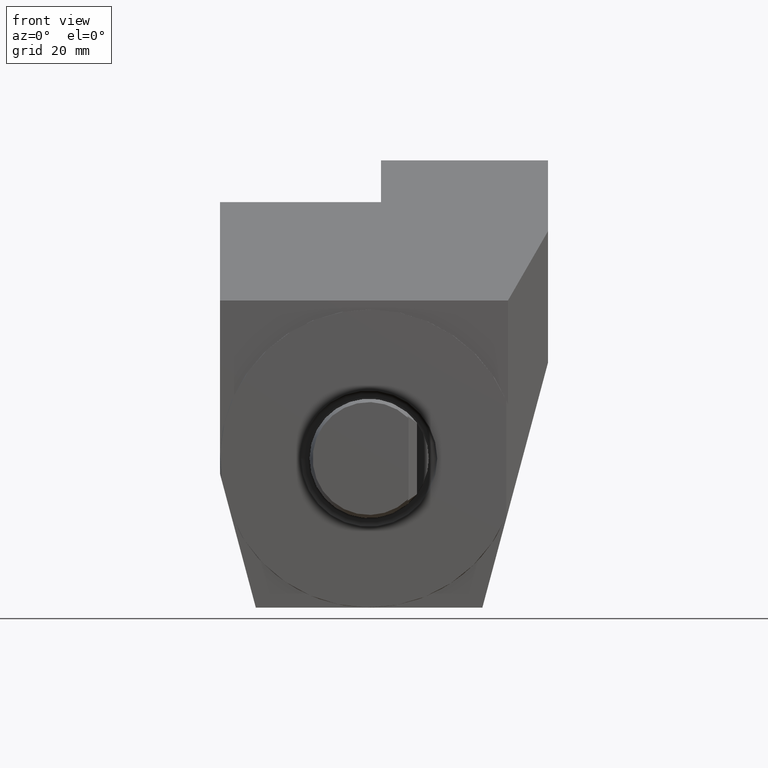
[diagram: clean part render]
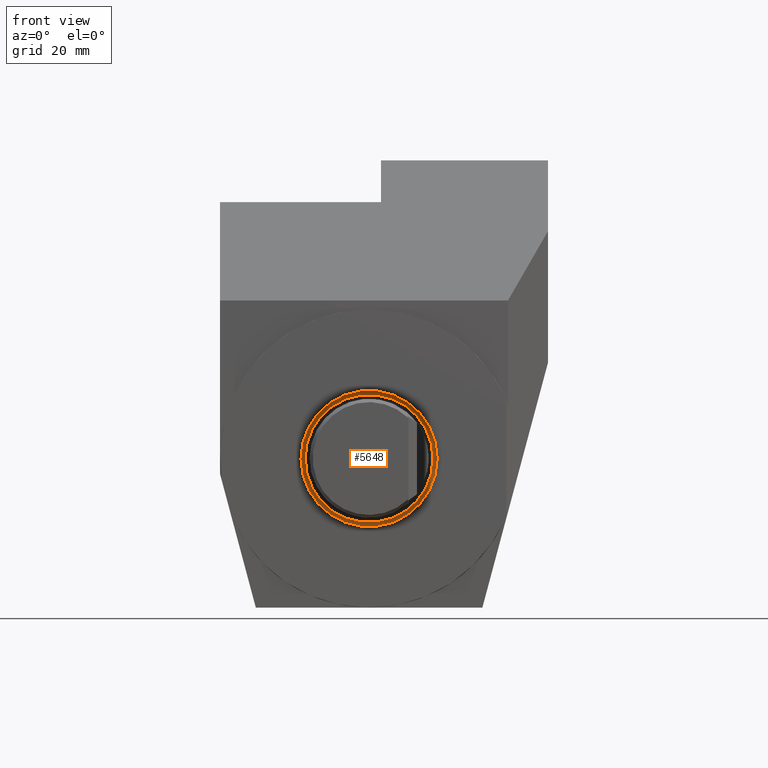
[diagram: same view with one face highlighted and labeled with its STEP entity id]
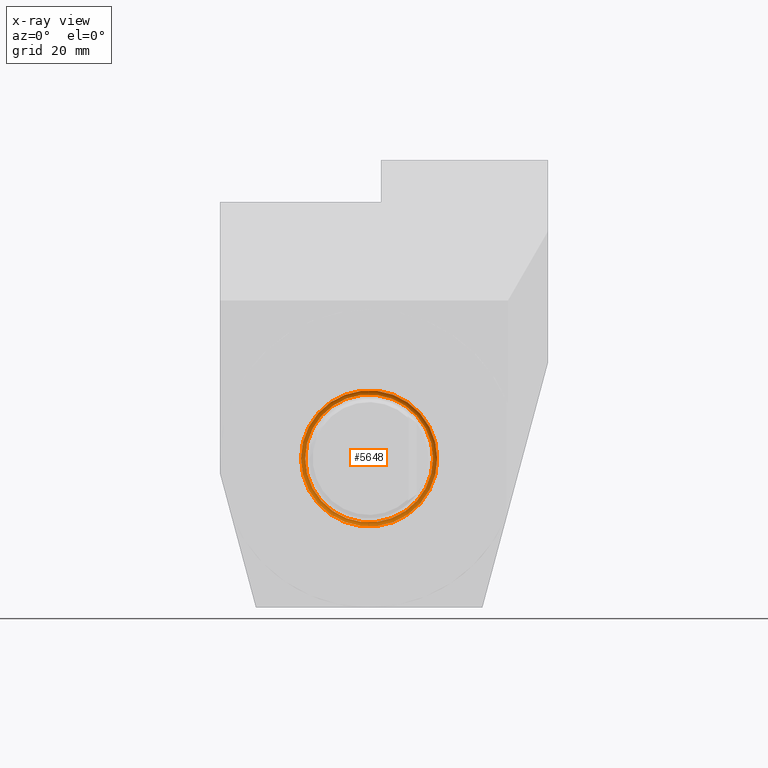
[diagram: x-ray of the same camera — body ghosted, the highlighted face saturated]
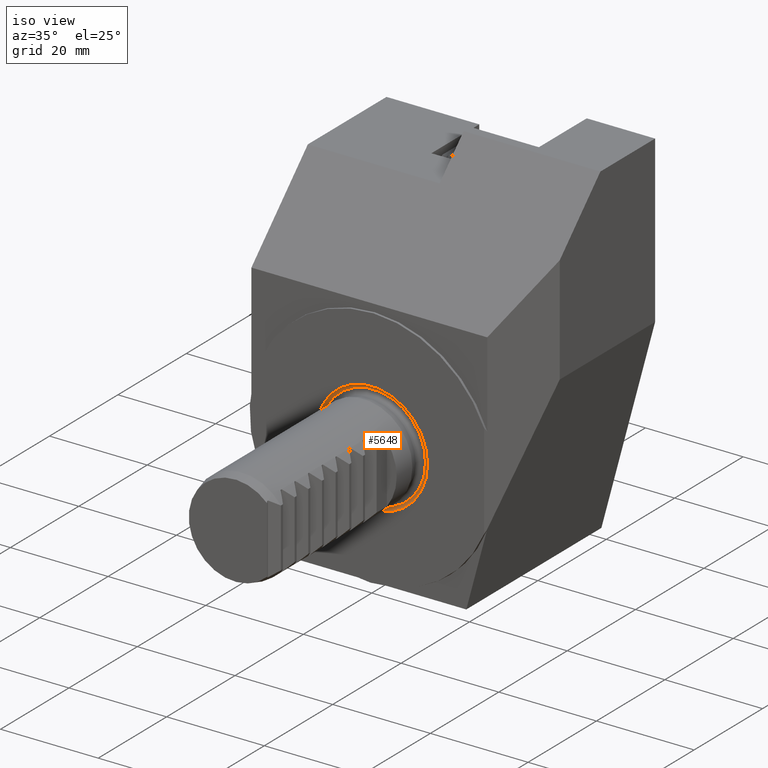
[diagram: same view with one face highlighted and labeled with its STEP entity id]
A machine part, front view. The second image highlights one B-rep face of the part: STEP entity #5648.
The next image is the same camera in x-ray: the body ghosted, the highlighted face saturated — about 0% of this face is hidden behind the body in this view.
A second angle (iso view) of the same face is appended — the face is thin or edge-on in the first view.
In plain terms, the highlighted toroidal blend (fillet) surface has major radius 10.7265 mm and minor (blend) radius 0.8 mm.
Its self-contained STEP definition (entity closure, byte-faithful):
#206 = CARTESIAN_POINT ( 'NONE',  ( 11.41932208922751180, 3.213949543990986333E-15, 0.000000000000000000 ) ) ;
#384 = VERTEX_POINT ( 'NONE', #1408 ) ;
#1176 = DIRECTION ( 'NONE',  ( 1.000000000000000000, 1.295371175675670281E-16, 0.000000000000000000 ) ) ;
#1408 = CARTESIAN_POINT ( 'NONE',  ( -10.72650176619996110, 0.4000000000000010769, 0.000000000000000000 ) ) ;
#1760 = DIRECTION ( 'NONE',  ( -1.000000000000000000, -1.314000458819186029E-16, 0.000000000000000000 ) ) ;
#1908 = FACE_OUTER_BOUND ( 'NONE', #8903, .T. ) ;
#2355 = ORIENTED_EDGE ( 'NONE', *, *, #9427, .T. ) ;
#2377 = DIRECTION ( 'NONE',  ( 1.295371175675670281E-16, -1.000000000000000000, 0.000000000000000000 ) ) ;
#2858 = DIRECTION ( 'NONE',  ( -1.295371175675670281E-16, 1.000000000000000000, -0.000000000000000000 ) ) ;
#3050 = AXIS2_PLACEMENT_3D ( 'NONE', #14453, #2858, #8021 ) ;
#3127 = CARTESIAN_POINT ( 'NONE',  ( -5.181484702702713540E-17, 0.4000000000000025202, 0.000000000000000000 ) ) ;
#5494 = EDGE_LOOP ( 'NONE', ( #2355 ) ) ;
#5648 = ADVANCED_FACE ( 'Defeature completata2_16', ( #9645, #1908 ), #7372, .F. ) ;
#6597 = VERTEX_POINT ( 'NONE', #206 ) ;
#7372 = TOROIDAL_SURFACE ( 'NONE', #3050, 10.72650176619996110, 0.8000000000000002665 ) ;
#8021 = DIRECTION ( 'NONE',  ( -1.000000000000000000, -1.295371175675670281E-16, 0.000000000000000000 ) ) ;
#8686 = AXIS2_PLACEMENT_3D ( 'NONE', #3127, #12372, #1760 ) ;
#8812 = CARTESIAN_POINT ( 'NONE',  ( -5.181484702702675946E-17, 1.734723475976807094E-15, 0.000000000000000000 ) ) ;
#8889 = ORIENTED_EDGE ( 'NONE', *, *, #9978, .T. ) ;
#8903 = EDGE_LOOP ( 'NONE', ( #8889 ) ) ;
#9427 = EDGE_CURVE ( 'NONE', #384, #384, #13831, .T. ) ;
#9645 = FACE_OUTER_BOUND ( 'NONE', #5494, .T. ) ;
#9978 = EDGE_CURVE ( 'NONE', #6597, #6597, #15718, .T. ) ;
#12372 = DIRECTION ( 'NONE',  ( -1.295371175675670281E-16, 1.000000000000000000, -0.000000000000000000 ) ) ;
#12758 = AXIS2_PLACEMENT_3D ( 'NONE', #8812, #2377, #1176 ) ;
#13831 = CIRCLE ( 'NONE', #8686, 10.72650176619996110 ) ;
#14453 = CARTESIAN_POINT ( 'NONE',  ( 0.000000000000000000, -0.3999999999999978573, 0.000000000000000000 ) ) ;
#15718 = CIRCLE ( 'NONE', #12758, 11.41932208922751180 ) ;